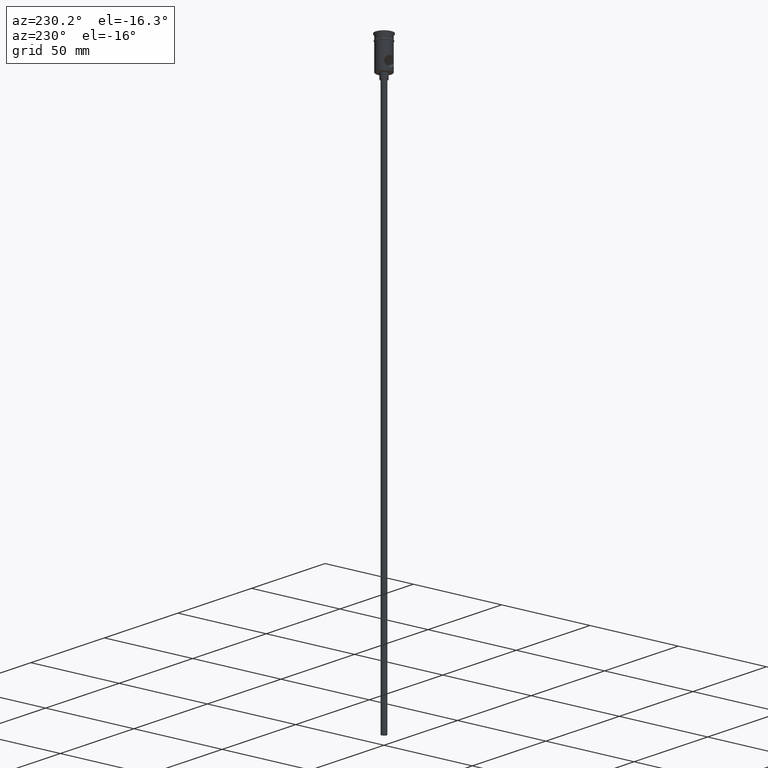
[diagram: clean part render]
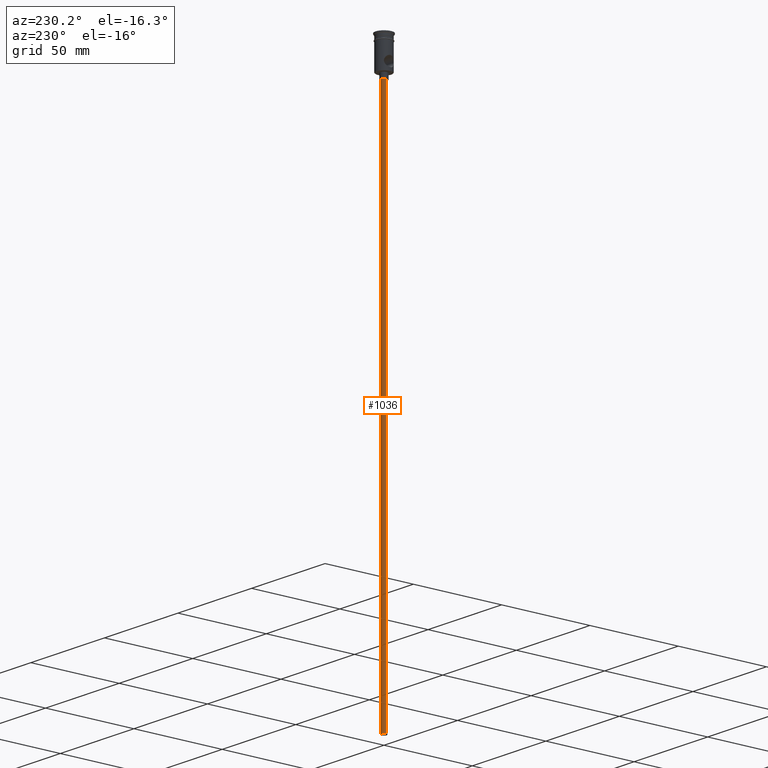
[diagram: same view with one face highlighted and labeled with its STEP entity id]
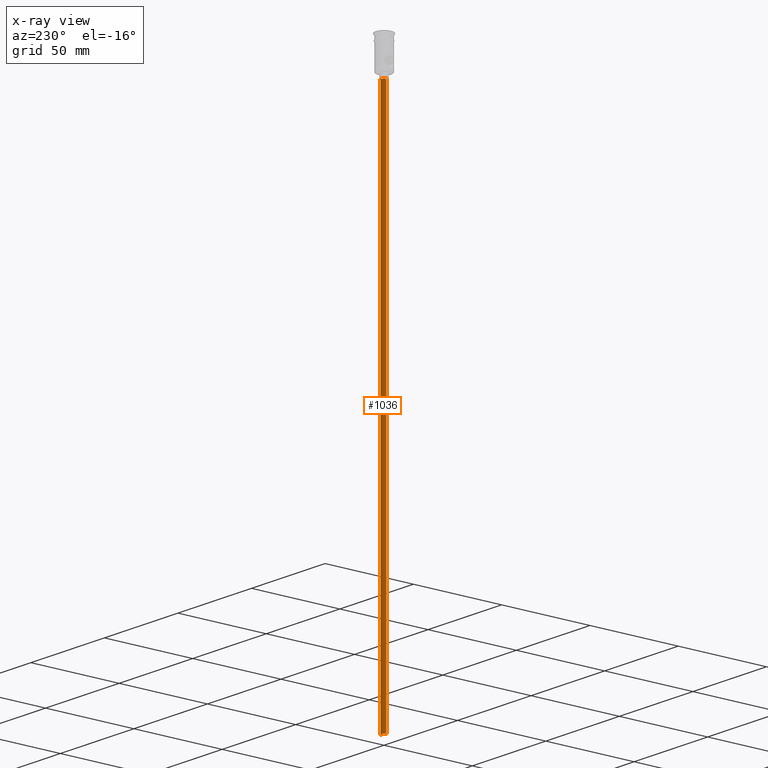
[diagram: x-ray of the same camera — body ghosted, the highlighted face saturated]
A machine part, auxiliary view. The second image highlights one B-rep face of the part: STEP entity #1036.
The next image is the same camera in x-ray: the body ghosted, the highlighted face saturated — about 0% of this face is hidden behind the body in this view.
In plain terms, the highlighted cylindrical surface (edge-blend (fillet) strip) has radius 1.5 mm, axis along (-0, -0, 1).
Its self-contained STEP definition (entity closure, byte-faithful):
#33 = DIRECTION ( 'NONE',  ( -0.000000000000000000, -0.000000000000000000, 1.000000000000000000 ) ) ;
#135 = VERTEX_POINT ( 'NONE', #311 ) ;
#157 = CYLINDRICAL_SURFACE ( 'NONE', #1067, 1.500000000000000222 ) ;
#191 = ORIENTED_EDGE ( 'NONE', *, *, #938, .T. ) ;
#265 = DIRECTION ( 'NONE',  ( -1.000000000000000000, 0.000000000000000000, 0.000000000000000000 ) ) ;
#277 = EDGE_CURVE ( 'NONE', #1339, #401, #437, .T. ) ;
#311 = CARTESIAN_POINT ( 'NONE',  ( 1.500000000000000222, 0.000000000000000000, -318.0000000000000000 ) ) ;
#324 = CARTESIAN_POINT ( 'NONE',  ( -1.500000000000000222, 1.836970198721030181E-16, -318.0000000000000000 ) ) ;
#327 = VERTEX_POINT ( 'NONE', #565 ) ;
#343 = ORIENTED_EDGE ( 'NONE', *, *, #886, .F. ) ;
#389 = EDGE_LOOP ( 'NONE', ( #1358, #1125, #191, #343 ) ) ;
#401 = VERTEX_POINT ( 'NONE', #1137 ) ;
#437 = LINE ( 'NONE', #324, #790 ) ;
#443 = AXIS2_PLACEMENT_3D ( 'NONE', #1432, #1299, #1198 ) ;
#502 = CARTESIAN_POINT ( 'NONE',  ( -1.500000000000000222, 1.836970198721030181E-16, -318.0000000000000000 ) ) ;
#513 = CARTESIAN_POINT ( 'NONE',  ( 0.000000000000000000, 0.000000000000000000, -20.99999999999999645 ) ) ;
#559 = CIRCLE ( 'NONE', #443, 1.500000000000000222 ) ;
#565 = CARTESIAN_POINT ( 'NONE',  ( 1.500000000000000222, 0.000000000000000000, -20.99999999999999645 ) ) ;
#606 = FACE_OUTER_BOUND ( 'NONE', #389, .T. ) ;
#614 = CARTESIAN_POINT ( 'NONE',  ( 0.000000000000000000, 0.000000000000000000, -318.0000000000000000 ) ) ;
#699 = VECTOR ( 'NONE', #33, 1000.000000000000000 ) ;
#712 = DIRECTION ( 'NONE',  ( 0.000000000000000000, 0.000000000000000000, -1.000000000000000000 ) ) ;
#767 = CIRCLE ( 'NONE', #840, 1.500000000000000222 ) ;
#790 = VECTOR ( 'NONE', #1110, 1000.000000000000000 ) ;
#840 = AXIS2_PLACEMENT_3D ( 'NONE', #513, #712, #265 ) ;
#886 = EDGE_CURVE ( 'NONE', #135, #327, #1361, .T. ) ;
#938 = EDGE_CURVE ( 'NONE', #401, #327, #767, .T. ) ;
#954 = DIRECTION ( 'NONE',  ( 1.000000000000000000, 0.000000000000000000, 0.000000000000000000 ) ) ;
#1032 = CARTESIAN_POINT ( 'NONE',  ( 1.500000000000000222, 0.000000000000000000, -318.0000000000000000 ) ) ;
#1036 = ADVANCED_FACE ( 'NONE', ( #606 ), #157, .T. ) ;
#1046 = EDGE_CURVE ( 'NONE', #1339, #135, #559, .T. ) ;
#1057 = DIRECTION ( 'NONE',  ( -0.000000000000000000, -0.000000000000000000, 1.000000000000000000 ) ) ;
#1067 = AXIS2_PLACEMENT_3D ( 'NONE', #614, #1057, #954 ) ;
#1110 = DIRECTION ( 'NONE',  ( -0.000000000000000000, -0.000000000000000000, 1.000000000000000000 ) ) ;
#1125 = ORIENTED_EDGE ( 'NONE', *, *, #277, .T. ) ;
#1137 = CARTESIAN_POINT ( 'NONE',  ( -1.500000000000000222, 1.836970198721030181E-16, -20.99999999999999645 ) ) ;
#1198 = DIRECTION ( 'NONE',  ( -1.000000000000000000, 0.000000000000000000, 0.000000000000000000 ) ) ;
#1299 = DIRECTION ( 'NONE',  ( 0.000000000000000000, 0.000000000000000000, -1.000000000000000000 ) ) ;
#1339 = VERTEX_POINT ( 'NONE', #502 ) ;
#1358 = ORIENTED_EDGE ( 'NONE', *, *, #1046, .F. ) ;
#1361 = LINE ( 'NONE', #1032, #699 ) ;
#1432 = CARTESIAN_POINT ( 'NONE',  ( 0.000000000000000000, 0.000000000000000000, -318.0000000000000000 ) ) ;